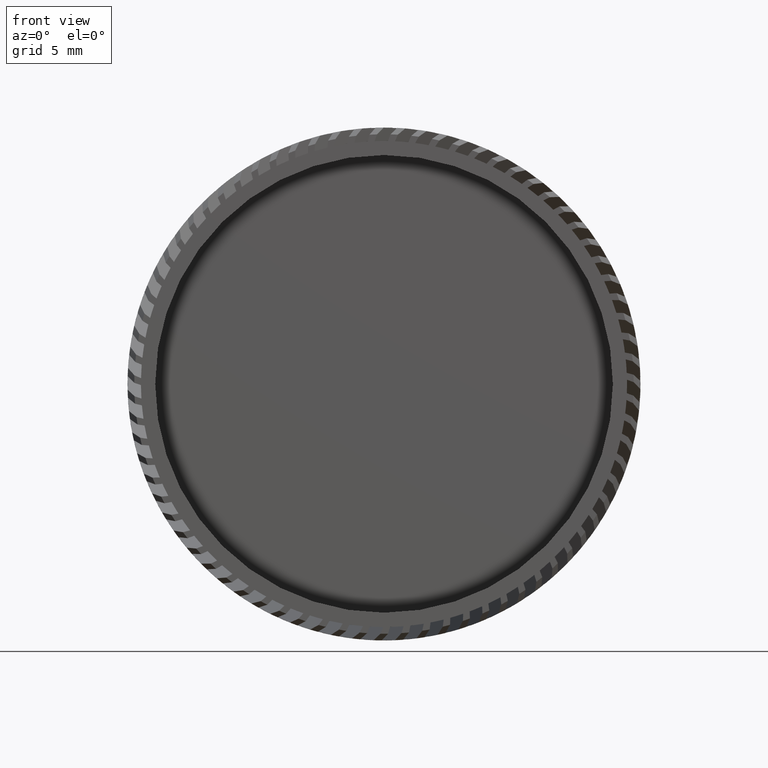
[diagram: clean part render]
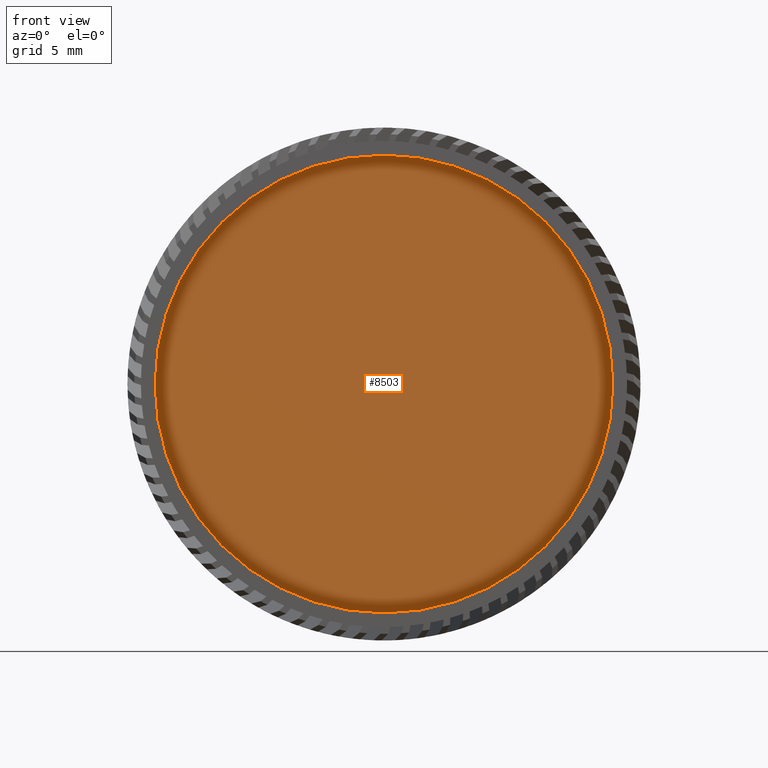
[diagram: same view with one face highlighted and labeled with its STEP entity id]
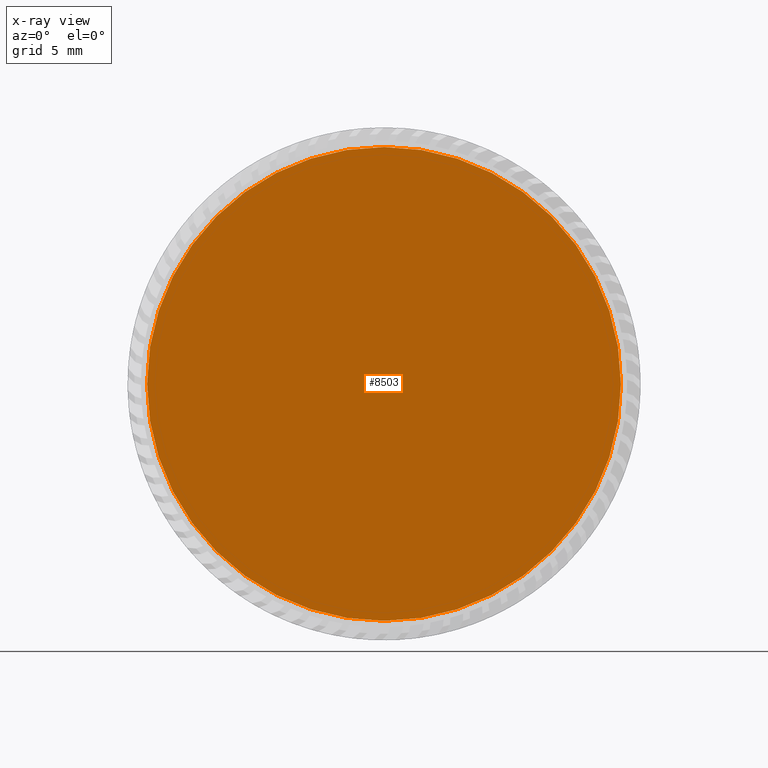
[diagram: x-ray of the same camera — body ghosted, the highlighted face saturated]
A machine part, front view. The second image highlights one B-rep face of the part: STEP entity #8503.
The next image is the same camera in x-ray: the body ghosted, the highlighted face saturated — about 0% of this face is hidden behind the body in this view.
In plain terms, the highlighted planar face has unit normal (-0, 1, 0).
Its self-contained STEP definition (entity closure, byte-faithful):
#33 = DIRECTION ( 'NONE',  ( -0.0000000000000000000, 1.000000000000000000, -0.0000000000000000000 ) ) ;
#763 = DIRECTION ( 'NONE',  ( -0.0000000000000000000, 1.000000000000000000, -0.0000000000000000000 ) ) ;
#1337 = DIRECTION ( 'NONE',  ( 0.0000000000000000000, 0.0000000000000000000, 1.000000000000000000 ) ) ;
#2495 = ORIENTED_EDGE ( 'NONE', *, *, #11143, .F. ) ;
#3288 = AXIS2_PLACEMENT_3D ( 'NONE', #15112, #33, #1337 ) ;
#4153 = AXIS2_PLACEMENT_3D ( 'NONE', #4454, #763, #10725 ) ;
#4454 = CARTESIAN_POINT ( 'NONE',  ( 0.0000000000000000000, -7.830884482231917700, 0.0000000000000000000 ) ) ;
#5698 = VERTEX_POINT ( 'NONE', #16139 ) ;
#6178 = EDGE_CURVE ( 'NONE', #5698, #13500, #6223, .T. ) ;
#6223 = CIRCLE ( 'NONE', #4153, 17.60000000000000900 ) ;
#6394 = DIRECTION ( 'NONE',  ( 0.0000000000000000000, 0.0000000000000000000, 1.000000000000000000 ) ) ;
#7600 = CARTESIAN_POINT ( 'NONE',  ( 17.60000000000000900, -7.830884482231917700, 0.0000000000000000000 ) ) ;
#8503 = ADVANCED_FACE ( 'NONE', ( #8529 ), #10131, .F. ) ;
#8529 = FACE_OUTER_BOUND ( 'NONE', #11141, .T. ) ;
#10131 = PLANE ( 'NONE',  #15865 ) ;
#10237 = DIRECTION ( 'NONE',  ( -0.0000000000000000000, 1.000000000000000000, 0.0000000000000000000 ) ) ;
#10725 = DIRECTION ( 'NONE',  ( 0.0000000000000000000, 0.0000000000000000000, 1.000000000000000000 ) ) ;
#11141 = EDGE_LOOP ( 'NONE', ( #12178, #2495 ) ) ;
#11143 = EDGE_CURVE ( 'NONE', #13500, #5698, #12036, .T. ) ;
#12036 = CIRCLE ( 'NONE', #3288, 17.60000000000000900 ) ;
#12178 = ORIENTED_EDGE ( 'NONE', *, *, #6178, .F. ) ;
#13500 = VERTEX_POINT ( 'NONE', #14859 ) ;
#14859 = CARTESIAN_POINT ( 'NONE',  ( 2.155378366499342800E-015, -7.830884482231917700, -17.60000000000000900 ) ) ;
#15112 = CARTESIAN_POINT ( 'NONE',  ( 0.0000000000000000000, -7.830884482231917700, 0.0000000000000000000 ) ) ;
#15865 = AXIS2_PLACEMENT_3D ( 'NONE', #7600, #10237, #6394 ) ;
#16139 = CARTESIAN_POINT ( 'NONE',  ( 0.0000000000000000000, -7.830884482231917700, 17.60000000000000900 ) ) ;